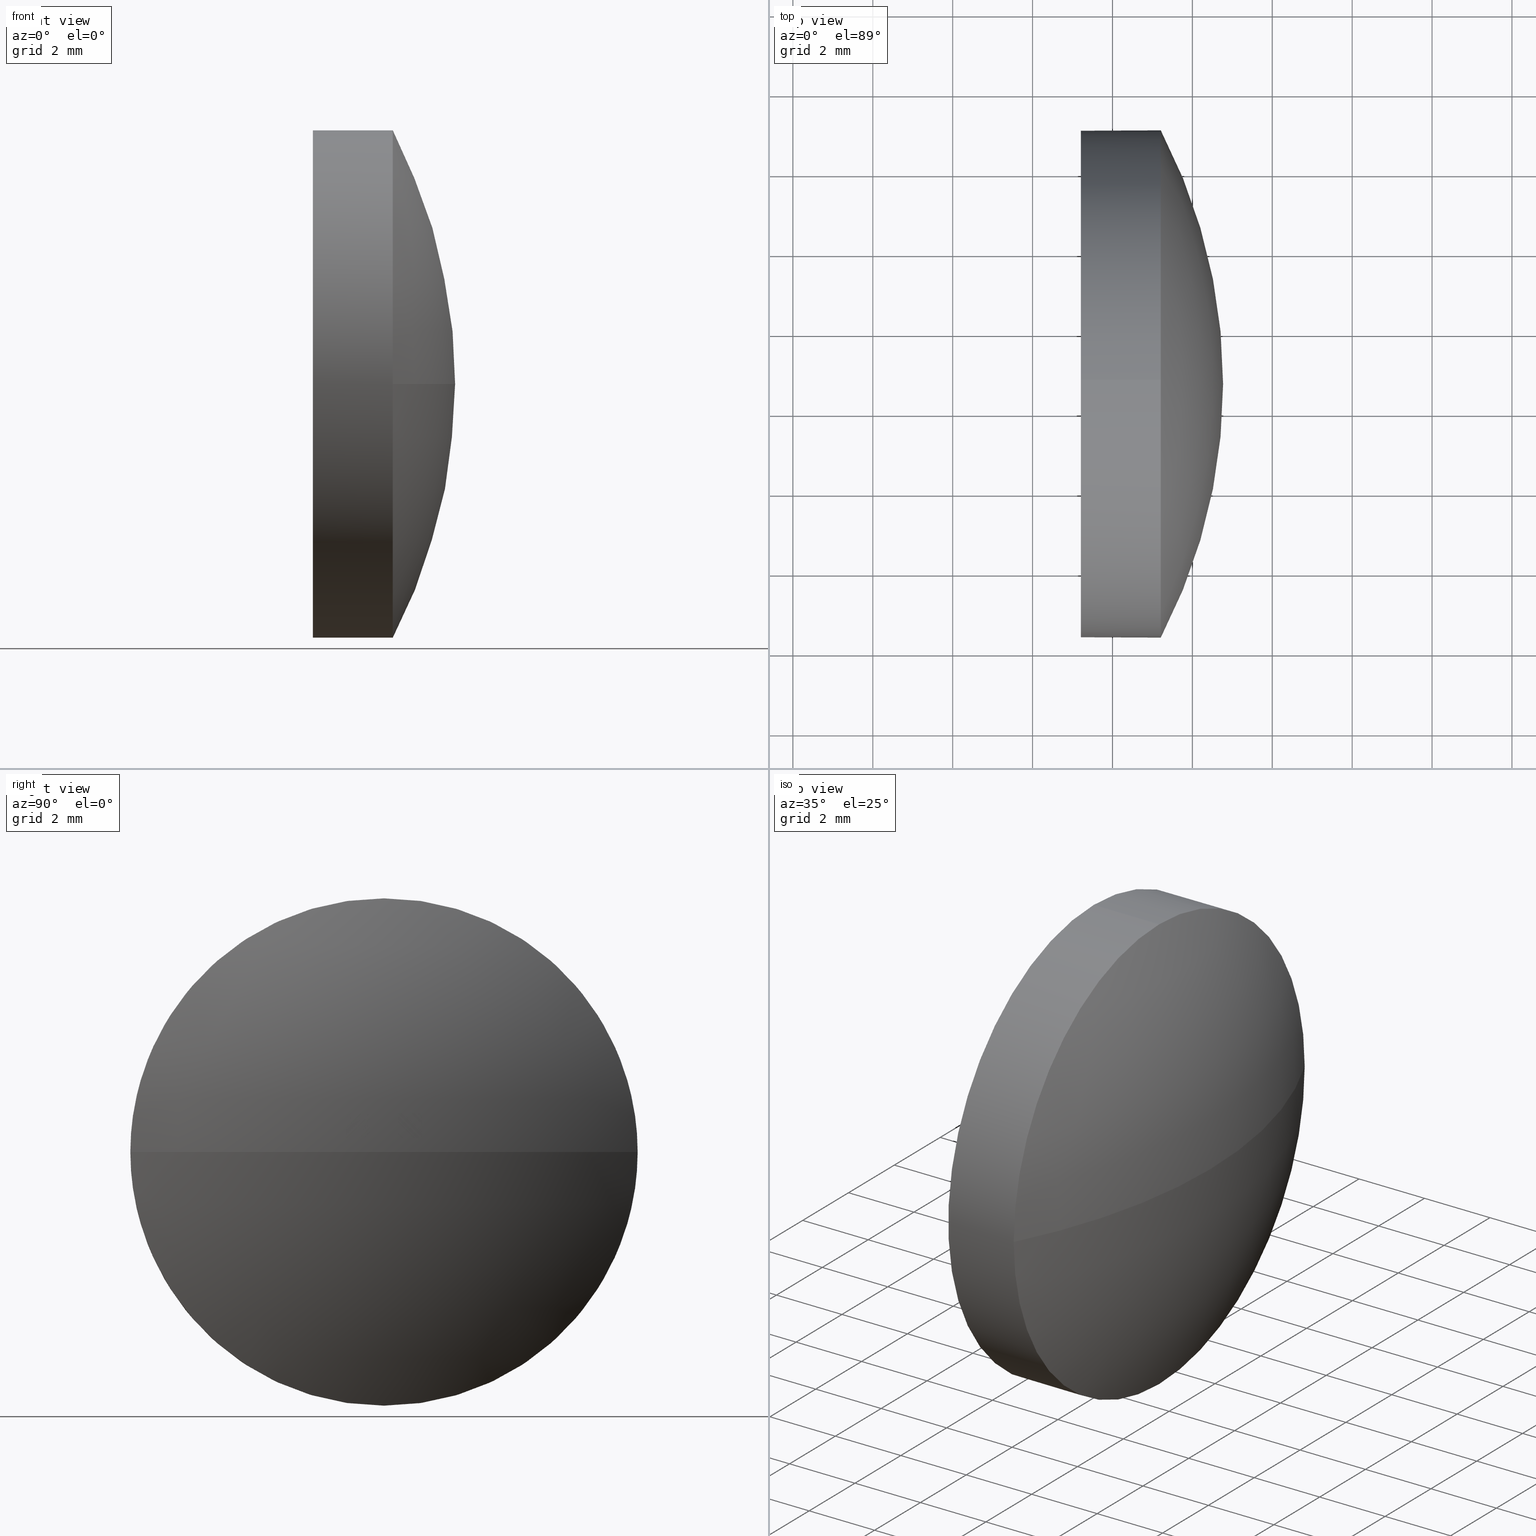
[diagram: canonical four-view strip — front | top / right | iso, engineering-drawing reading convention]
A machine part, canonical four-view strip (front | top / right | iso — engineering-drawing reading convention). The complete STEP part file that produces these views, byte-faithful:
ISO-10303-21;
HEADER;
FILE_DESCRIPTION (( 'STEP AP214' ),
    '1' );
FILE_NAME ('100366.STEP',
    '2019-06-04T02:23:03',
    ( '' ),
    ( '' ),
    'SwSTEP 2.0',
    'SolidWorks 2016',
    '' );
FILE_SCHEMA (( 'AUTOMOTIVE_DESIGN' ));
ENDSEC;

DATA;
#1 =( GEOMETRIC_REPRESENTATION_CONTEXT ( 3 ) GLOBAL_UNCERTAINTY_ASSIGNED_CONTEXT ( ( #147 ) ) GLOBAL_UNIT_ASSIGNED_CONTEXT ( ( #114, #33, #46 ) ) REPRESENTATION_CONTEXT ( 'NONE', 'WORKASPACE' ) );
#2 = UNCERTAINTY_MEASURE_WITH_UNIT (LENGTH_MEASURE( 1.000000000000000100E-005 ), #21, 'distance_accuracy_value', 'NONE');
#3 = ORIENTED_EDGE ( 'NONE', *, *, #28, .F. ) ;
#4 = EDGE_CURVE ( 'NONE', #27, #70, #67, .T. ) ;
#5 = DIRECTION ( 'NONE',  ( 0.0000000000000000000, 0.0000000000000000000, 1.000000000000000000 ) ) ;
#6 = ORIENTED_EDGE ( 'NONE', *, *, #134, .F. ) ;
#7 = DIRECTION ( 'NONE',  ( -0.0000000000000000000, 0.0000000000000000000, 1.000000000000000000 ) ) ;
#8 = COLOUR_RGB ( '',1.000000000000000000, 1.000000000000000000, 1.000000000000000000 ) ;
#9 = SURFACE_STYLE_USAGE ( .BOTH. , #142 ) ;
#10 = DIRECTION ( 'NONE',  ( 1.000000000000000000, 0.0000000000000000000, 0.0000000000000000000 ) ) ;
#11 = CARTESIAN_POINT ( 'NONE',  ( 364.8812651092808300, 34.69530442998001300, 6.350000000000001400 ) ) ;
#12 = AXIS2_PLACEMENT_3D ( 'NONE', #111, #75, #60 ) ;
#13 = VERTEX_POINT ( 'NONE', #164 ) ;
#14 = CIRCLE ( 'NONE', #159, 6.350000000000001400 ) ;
#15 = PRESENTATION_STYLE_ASSIGNMENT (( #170 ) ) ;
#16 = CYLINDRICAL_SURFACE ( 'NONE', #68, 6.350000000000001400 ) ;
#17 = CARTESIAN_POINT ( 'NONE',  ( 357.0654153941467800, 34.69530442998000600, 0.0000000000000000000 ) ) ;
#18 = CARTESIAN_POINT ( 'NONE',  ( 369.2092935992750400, 41.04530442998002100, 0.0000000000000000000 ) ) ;
#19 = VECTOR ( 'NONE', #102, 1000.000000000000000 ) ;
#20 = DIRECTION ( 'NONE',  ( -0.0000000000000000000, 0.0000000000000000000, -1.000000000000000000 ) ) ;
#21 =( LENGTH_UNIT ( ) NAMED_UNIT ( * ) SI_UNIT ( .MILLI., .METRE. ) );
#22 = VERTEX_POINT ( 'NONE', #153 ) ;
#23 = DIRECTION ( 'NONE',  ( -1.000000000000000000, -0.0000000000000000000, -0.0000000000000000000 ) ) ;
#24 = ADVANCED_BREP_SHAPE_REPRESENTATION ( '100366', ( #179, #52 ), #26 ) ;
#25 = EDGE_LOOP ( 'NONE', ( #132, #128, #140, #115, #186 ) ) ;
#26 =( GEOMETRIC_REPRESENTATION_CONTEXT ( 3 ) GLOBAL_UNCERTAINTY_ASSIGNED_CONTEXT ( ( #2 ) ) GLOBAL_UNIT_ASSIGNED_CONTEXT ( ( #21, #168, #81 ) ) REPRESENTATION_CONTEXT ( 'NONE', 'WORKASPACE' ) );
#27 = VERTEX_POINT ( 'NONE', #149 ) ;
#28 = EDGE_CURVE ( 'NONE', #13, #36, #174, .T. ) ;
#29 = ORIENTED_EDGE ( 'NONE', *, *, #71, .F. ) ;
#30 = PLANE ( 'NONE',  #38 ) ;
#31 = CARTESIAN_POINT ( 'NONE',  ( 369.2092935992750400, 34.69530442998001300, 0.0000000000000000000 ) ) ;
#32 = SURFACE_STYLE_FILL_AREA ( #99 ) ;
#33 =( NAMED_UNIT ( * ) PLANE_ANGLE_UNIT ( ) SI_UNIT ( $, .RADIAN. ) );
#34 = APPLICATION_CONTEXT ( 'automotive_design' ) ;
#35 = PRODUCT_DEFINITION_CONTEXT ( 'detailed design', #171, 'design' ) ;
#36 = VERTEX_POINT ( 'NONE', #18 ) ;
#37 = AXIS2_PLACEMENT_3D ( 'NONE', #97, #7, #150 ) ;
#38 = AXIS2_PLACEMENT_3D ( 'NONE', #135, #112, #59 ) ;
#39 = EDGE_LOOP ( 'NONE', ( #74, #144 ) ) ;
#40 = PRESENTATION_LAYER_ASSIGNMENT (  '', '', ( #69 ) ) ;
#41 = VERTEX_POINT ( 'NONE', #73 ) ;
#42 = ADVANCED_FACE ( 'NONE', ( #101 ), #30, .F. ) ;
#43 = DIRECTION ( 'NONE',  ( -1.000000000000000000, -0.0000000000000000000, -0.0000000000000000000 ) ) ;
#44 = AXIS2_PLACEMENT_3D ( 'NONE', #108, #139, #129 ) ;
#45 = DIRECTION ( 'NONE',  ( 0.0000000000000000000, 0.0000000000000000000, 1.000000000000000000 ) ) ;
#46 =( NAMED_UNIT ( * ) SI_UNIT ( $, .STERADIAN. ) SOLID_ANGLE_UNIT ( ) );
#47 = DIRECTION ( 'NONE',  ( -1.000000000000000000, -0.0000000000000000000, -0.0000000000000000000 ) ) ;
#48 = EDGE_LOOP ( 'NONE', ( #152, #160, #92, #178, #29 ) ) ;
#49 = FILL_AREA_STYLE ('',( #185 ) ) ;
#50 = AXIS2_PLACEMENT_3D ( 'NONE', #177, #181, #45 ) ;
#51 = SPHERICAL_SURFACE ( 'NONE', #54, 13.70387820512830000 ) ;
#52 = AXIS2_PLACEMENT_3D ( 'NONE', #141, #183, #10 ) ;
#53 = FACE_OUTER_BOUND ( 'NONE', #25, .T. ) ;
#54 = AXIS2_PLACEMENT_3D ( 'NONE', #79, #20, #95 ) ;
#55 = LINE ( 'NONE', #11, #19 ) ;
#56 = ADVANCED_FACE ( 'NONE', ( #175 ), #51, .T. ) ;
#57 = ORIENTED_EDGE ( 'NONE', *, *, #151, .F. ) ;
#58 = MECHANICAL_DESIGN_GEOMETRIC_PRESENTATION_REPRESENTATION (  '', ( #148 ), #1 ) ;
#59 = DIRECTION ( 'NONE',  ( 0.0000000000000000000, 0.0000000000000000000, -1.000000000000000000 ) ) ;
#60 = DIRECTION ( 'NONE',  ( 0.0000000000000000000, 0.0000000000000000000, 1.000000000000000000 ) ) ;
#61 = DIRECTION ( 'NONE',  ( -0.0000000000000000000, 0.0000000000000000000, -1.000000000000000000 ) ) ;
#62 = DIRECTION ( 'NONE',  ( -1.000000000000000000, -0.0000000000000000000, -0.0000000000000000000 ) ) ;
#63 = PRODUCT_DEFINITION_SHAPE ( 'NONE', 'NONE',  #72 ) ;
#64 =( GEOMETRIC_REPRESENTATION_CONTEXT ( 3 ) GLOBAL_UNCERTAINTY_ASSIGNED_CONTEXT ( ( #77 ) ) GLOBAL_UNIT_ASSIGNED_CONTEXT ( ( #88, #125, #126 ) ) REPRESENTATION_CONTEXT ( 'NONE', 'WORKASPACE' ) );
#65 = CARTESIAN_POINT ( 'NONE',  ( 369.2092935992750400, 34.69530442998001300, 0.0000000000000000000 ) ) ;
#66 = SURFACE_SIDE_STYLE ('',( #173 ) ) ;
#67 = CIRCLE ( 'NONE', #12, 6.350000000000001400 ) ;
#68 = AXIS2_PLACEMENT_3D ( 'NONE', #122, #154, #5 ) ;
#69 = STYLED_ITEM ( 'NONE', ( #15 ), #24 ) ;
#70 = VERTEX_POINT ( 'NONE', #138 ) ;
#71 = EDGE_CURVE ( 'NONE', #70, #27, #117, .T. ) ;
#72 = PRODUCT_DEFINITION ( 'δ֪', '', #107, #35 ) ;
#73 = CARTESIAN_POINT ( 'NONE',  ( 369.2092935992750400, 34.69530442998001300, 6.350000000000001400 ) ) ;
#74 = ORIENTED_EDGE ( 'NONE', *, *, #4, .T. ) ;
#75 = DIRECTION ( 'NONE',  ( -1.000000000000000000, -0.0000000000000000000, -0.0000000000000000000 ) ) ;
#76 = EDGE_CURVE ( 'NONE', #121, #41, #106, .T. ) ;
#77 = UNCERTAINTY_MEASURE_WITH_UNIT (LENGTH_MEASURE( 1.000000000000000100E-005 ), #88, 'distance_accuracy_value', 'NONE');
#78 = DIRECTION ( 'NONE',  ( 0.0000000000000000000, 0.0000000000000000000, 1.000000000000000000 ) ) ;
#79 = CARTESIAN_POINT ( 'NONE',  ( 357.0654153941467800, 34.69530442998000600, 0.0000000000000000000 ) ) ;
#80 = COLOUR_RGB ( '',1.000000000000000000, 1.000000000000000000, 1.000000000000000000 ) ;
#81 =( NAMED_UNIT ( * ) SI_UNIT ( $, .STERADIAN. ) SOLID_ANGLE_UNIT ( ) );
#82 = ADVANCED_FACE ( 'NONE', ( #109 ), #16, .T. ) ;
#83 = DIRECTION ( 'NONE',  ( 0.0000000000000000000, 0.0000000000000000000, 1.000000000000000000 ) ) ;
#84 = PRODUCT_CONTEXT ( 'NONE', #34, 'mechanical' ) ;
#85 = ADVANCED_FACE ( 'NONE', ( #136 ), #169, .T. ) ;
#86 = AXIS2_PLACEMENT_3D ( 'NONE', #17, #61, #123 ) ;
#87 = ORIENTED_EDGE ( 'NONE', *, *, #91, .T. ) ;
#88 =( LENGTH_UNIT ( ) NAMED_UNIT ( * ) SI_UNIT ( .MILLI., .METRE. ) );
#89 = ORIENTED_EDGE ( 'NONE', *, *, #28, .T. ) ;
#90 = MECHANICAL_DESIGN_GEOMETRIC_PRESENTATION_REPRESENTATION (  '', ( #69 ), #64 ) ;
#91 = EDGE_CURVE ( 'NONE', #13, #121, #94, .T. ) ;
#92 = ORIENTED_EDGE ( 'NONE', *, *, #76, .T. ) ;
#93 = VECTOR ( 'NONE', #47, 1000.000000000000000 ) ;
#94 = CIRCLE ( 'NONE', #44, 13.70387820512830000 ) ;
#95 = DIRECTION ( 'NONE',  ( 0.0000000000000000000, 1.000000000000000000, 0.0000000000000000000 ) ) ;
#96 = DIRECTION ( 'NONE',  ( -1.000000000000000000, -0.0000000000000000000, -0.0000000000000000000 ) ) ;
#97 = CARTESIAN_POINT ( 'NONE',  ( 357.0654153941467800, 34.69530442998000600, 0.0000000000000000000 ) ) ;
#98 = CIRCLE ( 'NONE', #110, 6.350000000000001400 ) ;
#99 = FILL_AREA_STYLE ('',( #167 ) ) ;
#100 = EDGE_CURVE ( 'NONE', #36, #22, #104, .T. ) ;
#101 = FACE_OUTER_BOUND ( 'NONE', #39, .T. ) ;
#102 = DIRECTION ( 'NONE',  ( -1.000000000000000000, -0.0000000000000000000, -0.0000000000000000000 ) ) ;
#103 = AXIS2_PLACEMENT_3D ( 'NONE', #65, #23, #127 ) ;
#104 = CIRCLE ( 'NONE', #103, 6.350000000000001400 ) ;
#105 = EDGE_LOOP ( 'NONE', ( #3, #87, #57, #172 ) ) ;
#106 = CIRCLE ( 'NONE', #50, 6.350000000000001400 ) ;
#107 = PRODUCT_DEFINITION_FORMATION_WITH_SPECIFIED_SOURCE ( '�κ�', '', #145, .NOT_KNOWN. ) ;
#108 = CARTESIAN_POINT ( 'NONE',  ( 357.0654153941467800, 34.69530442998000600, 0.0000000000000000000 ) ) ;
#109 = FACE_OUTER_BOUND ( 'NONE', #48, .T. ) ;
#110 = AXIS2_PLACEMENT_3D ( 'NONE', #31, #62, #83 ) ;
#111 = CARTESIAN_POINT ( 'NONE',  ( 367.2092935992750400, 34.69530442998001300, 0.0000000000000000000 ) ) ;
#112 = DIRECTION ( 'NONE',  ( 1.000000000000000000, 0.0000000000000000000, 0.0000000000000000000 ) ) ;
#113 = PRESENTATION_STYLE_ASSIGNMENT (( #9 ) ) ;
#114 =( LENGTH_UNIT ( ) NAMED_UNIT ( * ) SI_UNIT ( .MILLI., .METRE. ) );
#115 = ORIENTED_EDGE ( 'NONE', *, *, #130, .F. ) ;
#116 = PRODUCT_RELATED_PRODUCT_CATEGORY ( 'part', '', ( #145 ) ) ;
#117 = CIRCLE ( 'NONE', #137, 6.350000000000001400 ) ;
#118 = AXIS2_PLACEMENT_3D ( 'NONE', #120, #96, #155 ) ;
#119 = ADVANCED_FACE ( 'NONE', ( #53 ), #133, .T. ) ;
#120 = CARTESIAN_POINT ( 'NONE',  ( 364.8812651092808300, 34.69530442998001300, 0.0000000000000000000 ) ) ;
#121 = VERTEX_POINT ( 'NONE', #157 ) ;
#122 = CARTESIAN_POINT ( 'NONE',  ( 364.8812651092808300, 34.69530442998001300, 0.0000000000000000000 ) ) ;
#123 = DIRECTION ( 'NONE',  ( 0.0000000000000000000, 1.000000000000000000, 0.0000000000000000000 ) ) ;
#124 = CLOSED_SHELL ( 'NONE', ( #119, #85, #56, #82, #42 ) ) ;
#125 =( NAMED_UNIT ( * ) PLANE_ANGLE_UNIT ( ) SI_UNIT ( $, .RADIAN. ) );
#126 =( NAMED_UNIT ( * ) SI_UNIT ( $, .STERADIAN. ) SOLID_ANGLE_UNIT ( ) );
#127 = DIRECTION ( 'NONE',  ( 0.0000000000000000000, 0.0000000000000000000, 1.000000000000000000 ) ) ;
#128 = ORIENTED_EDGE ( 'NONE', *, *, #161, .T. ) ;
#129 = DIRECTION ( 'NONE',  ( 0.0000000000000000000, 1.000000000000000000, 1.224646799147353200E-016 ) ) ;
#130 = EDGE_CURVE ( 'NONE', #41, #27, #55, .T. ) ;
#131 = LINE ( 'NONE', #158, #93 ) ;
#132 = ORIENTED_EDGE ( 'NONE', *, *, #100, .T. ) ;
#133 = CYLINDRICAL_SURFACE ( 'NONE', #118, 6.350000000000001400 ) ;
#134 = EDGE_CURVE ( 'NONE', #41, #36, #98, .T. ) ;
#135 = CARTESIAN_POINT ( 'NONE',  ( 367.2092935992750400, 34.69530442998001300, 0.0000000000000000000 ) ) ;
#136 = FACE_OUTER_BOUND ( 'NONE', #105, .T. ) ;
#137 = AXIS2_PLACEMENT_3D ( 'NONE', #165, #43, #78 ) ;
#138 = CARTESIAN_POINT ( 'NONE',  ( 367.2092935992750400, 34.69530442998001300, -6.350000000000001400 ) ) ;
#139 = DIRECTION ( 'NONE',  ( 0.0000000000000000000, 1.224646799147353200E-016, -1.000000000000000000 ) ) ;
#140 = ORIENTED_EDGE ( 'NONE', *, *, #4, .F. ) ;
#141 = CARTESIAN_POINT ( 'NONE',  ( 0.0000000000000000000, 0.0000000000000000000, 0.0000000000000000000 ) ) ;
#142 = SURFACE_SIDE_STYLE ('',( #32 ) ) ;
#143 = DIRECTION ( 'NONE',  ( -1.000000000000000000, -0.0000000000000000000, -0.0000000000000000000 ) ) ;
#144 = ORIENTED_EDGE ( 'NONE', *, *, #71, .T. ) ;
#145 = PRODUCT ( '100366', '100366', '', ( #84 ) ) ;
#146 = ORIENTED_EDGE ( 'NONE', *, *, #91, .F. ) ;
#147 = UNCERTAINTY_MEASURE_WITH_UNIT (LENGTH_MEASURE( 1.000000000000000100E-005 ), #114, 'distance_accuracy_value', 'NONE');
#148 = STYLED_ITEM ( 'NONE', ( #113 ), #179 ) ;
#149 = CARTESIAN_POINT ( 'NONE',  ( 367.2092935992750400, 34.69530442998001300, 6.350000000000001400 ) ) ;
#150 = DIRECTION ( 'NONE',  ( 1.000000000000000000, 0.0000000000000000000, 0.0000000000000000000 ) ) ;
#151 = EDGE_CURVE ( 'NONE', #22, #121, #14, .T. ) ;
#152 = ORIENTED_EDGE ( 'NONE', *, *, #161, .F. ) ;
#153 = CARTESIAN_POINT ( 'NONE',  ( 369.2092935992750400, 34.69530442998001300, -6.350000000000001400 ) ) ;
#154 = DIRECTION ( 'NONE',  ( -1.000000000000000000, -0.0000000000000000000, -0.0000000000000000000 ) ) ;
#155 = DIRECTION ( 'NONE',  ( 0.0000000000000000000, 0.0000000000000000000, 1.000000000000000000 ) ) ;
#156 = DIRECTION ( 'NONE',  ( 0.0000000000000000000, 0.0000000000000000000, 1.000000000000000000 ) ) ;
#157 = CARTESIAN_POINT ( 'NONE',  ( 369.2092935992750400, 28.34530442997999700, -7.776507174585700100E-016 ) ) ;
#158 = CARTESIAN_POINT ( 'NONE',  ( 364.8812651092808300, 34.69530442998001300, -6.350000000000001400 ) ) ;
#159 = AXIS2_PLACEMENT_3D ( 'NONE', #182, #143, #156 ) ;
#160 = ORIENTED_EDGE ( 'NONE', *, *, #151, .T. ) ;
#161 = EDGE_CURVE ( 'NONE', #22, #70, #131, .T. ) ;
#162 = EDGE_LOOP ( 'NONE', ( #146, #89, #6, #163 ) ) ;
#163 = ORIENTED_EDGE ( 'NONE', *, *, #76, .F. ) ;
#164 = CARTESIAN_POINT ( 'NONE',  ( 370.7692935992751000, 34.69530442998000600, 0.0000000000000000000 ) ) ;
#165 = CARTESIAN_POINT ( 'NONE',  ( 367.2092935992750400, 34.69530442998001300, 0.0000000000000000000 ) ) ;
#166 = APPLICATION_PROTOCOL_DEFINITION ( 'draft international standard', 'automotive_design', 1998, #34 ) ;
#167 = FILL_AREA_STYLE_COLOUR ( '', #8 ) ;
#168 =( NAMED_UNIT ( * ) PLANE_ANGLE_UNIT ( ) SI_UNIT ( $, .RADIAN. ) );
#169 = SPHERICAL_SURFACE ( 'NONE', #86, 13.70387820512830000 ) ;
#170 = SURFACE_STYLE_USAGE ( .BOTH. , #66 ) ;
#171 = APPLICATION_CONTEXT ( 'automotive_design' ) ;
#172 = ORIENTED_EDGE ( 'NONE', *, *, #100, .F. ) ;
#173 = SURFACE_STYLE_FILL_AREA ( #49 ) ;
#174 = CIRCLE ( 'NONE', #37, 13.70387820512830500 ) ;
#175 = FACE_OUTER_BOUND ( 'NONE', #162, .T. ) ;
#176 = PRESENTATION_LAYER_ASSIGNMENT (  '', '', ( #148 ) ) ;
#177 = CARTESIAN_POINT ( 'NONE',  ( 369.2092935992750400, 34.69530442998001300, 0.0000000000000000000 ) ) ;
#178 = ORIENTED_EDGE ( 'NONE', *, *, #130, .T. ) ;
#179 = MANIFOLD_SOLID_BREP ( '��ת1', #124 ) ;
#180 = SHAPE_DEFINITION_REPRESENTATION ( #63, #24 ) ;
#181 = DIRECTION ( 'NONE',  ( -1.000000000000000000, -0.0000000000000000000, -0.0000000000000000000 ) ) ;
#182 = CARTESIAN_POINT ( 'NONE',  ( 369.2092935992750400, 34.69530442998001300, 0.0000000000000000000 ) ) ;
#183 = DIRECTION ( 'NONE',  ( 0.0000000000000000000, 0.0000000000000000000, 1.000000000000000000 ) ) ;
#184 = APPLICATION_PROTOCOL_DEFINITION ( 'draft international standard', 'automotive_design', 1998, #171 ) ;
#185 = FILL_AREA_STYLE_COLOUR ( '', #80 ) ;
#186 = ORIENTED_EDGE ( 'NONE', *, *, #134, .T. ) ;
ENDSEC;
END-ISO-10303-21;
